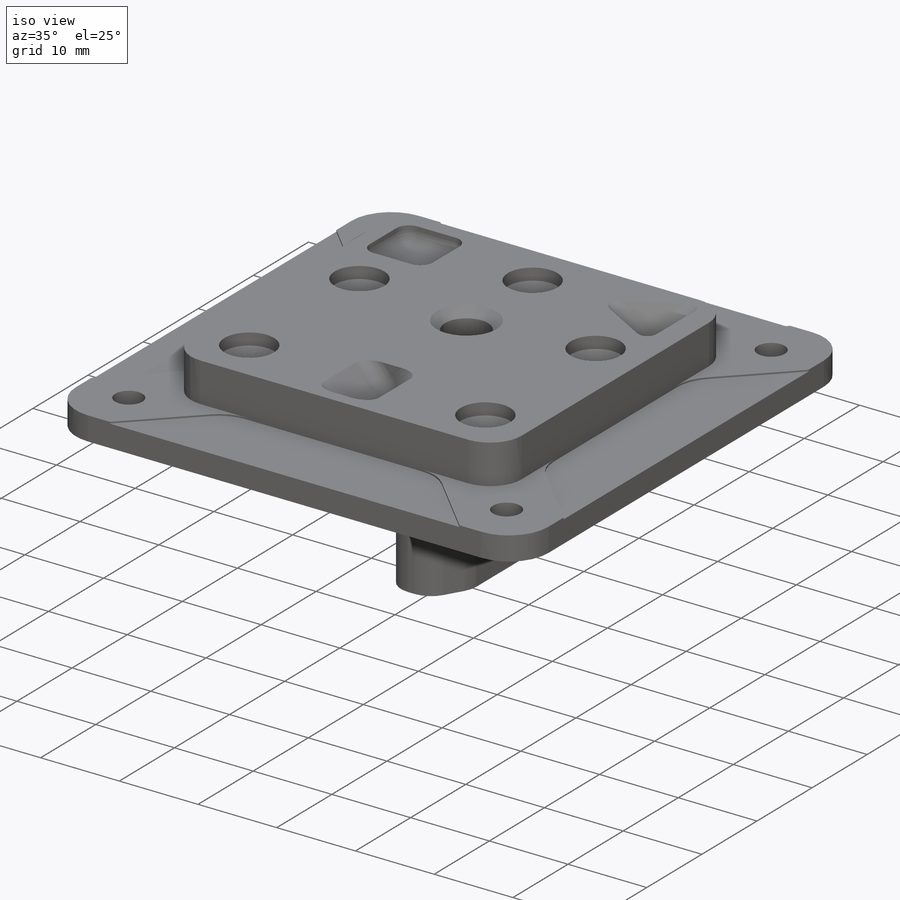
[diagram: iso view]
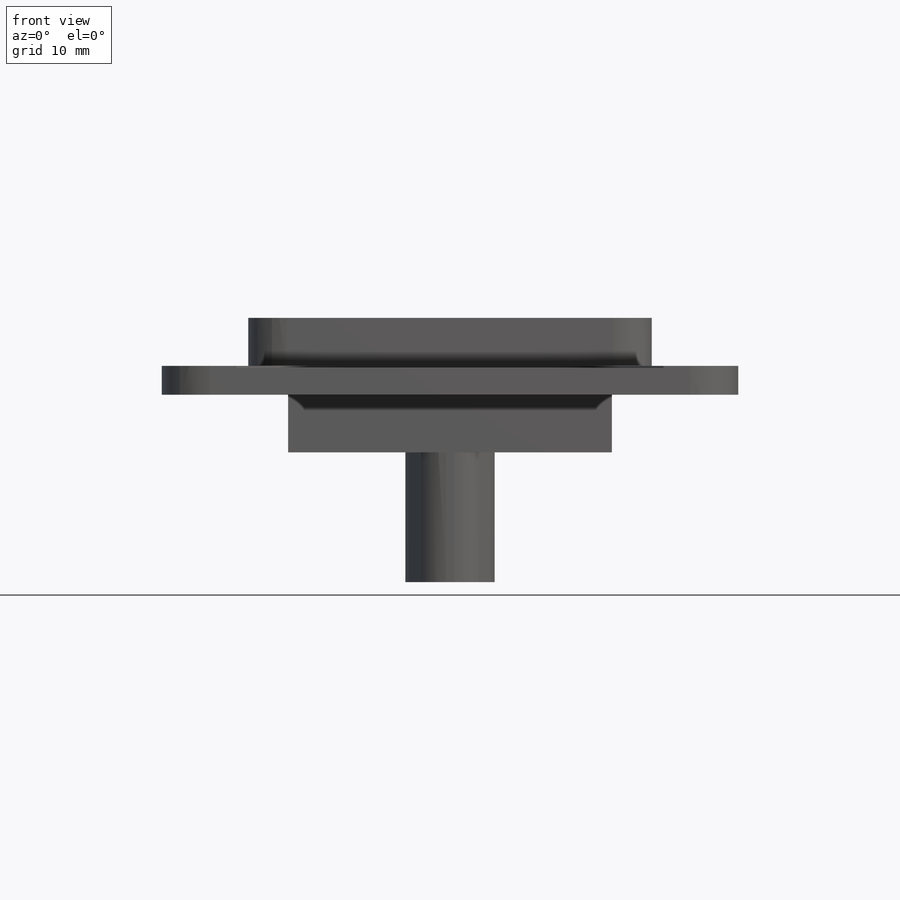
[diagram: front view]
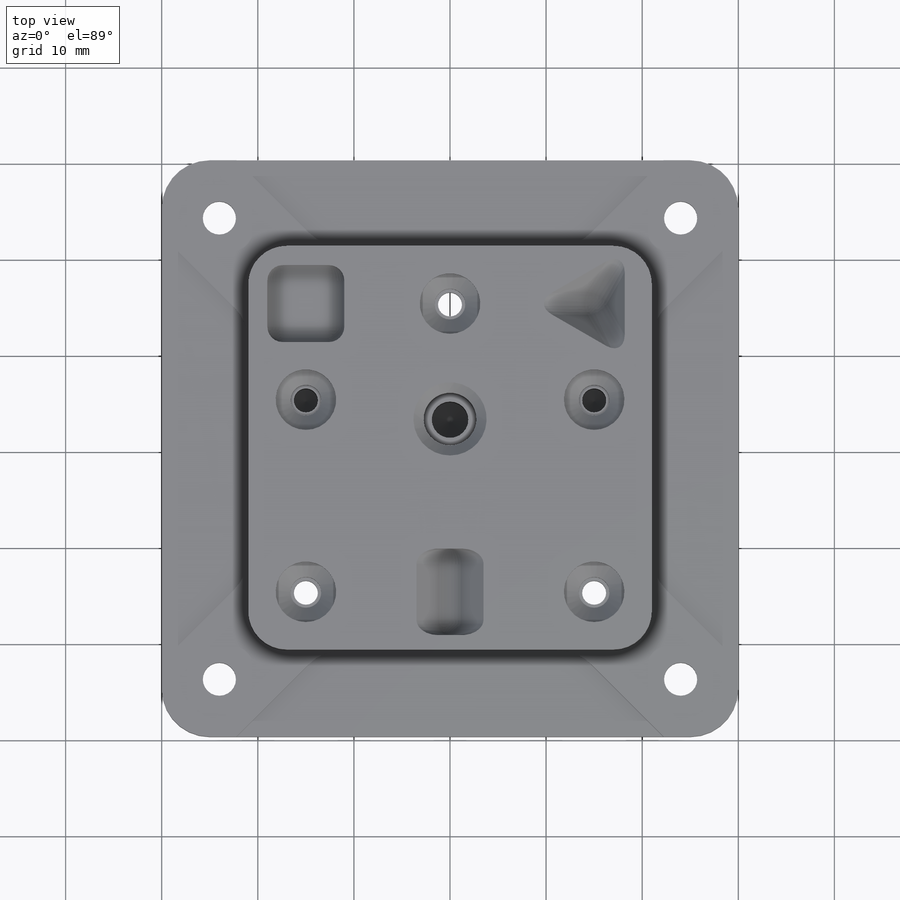
[diagram: top view]
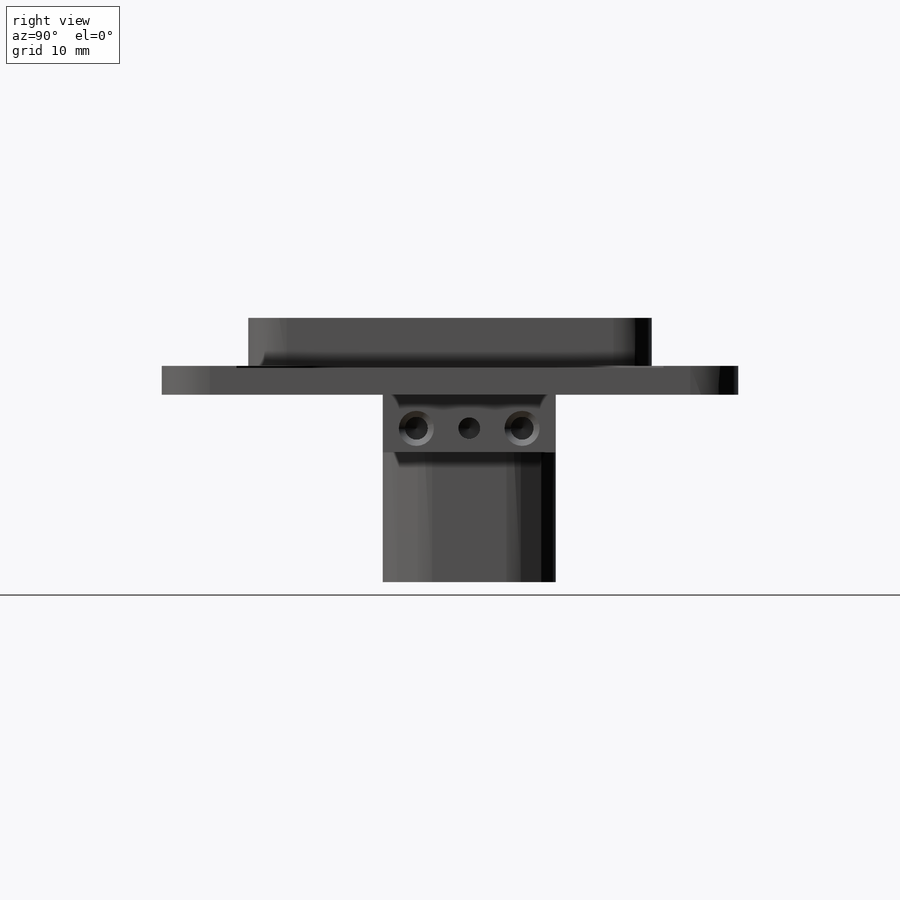
[diagram: right view]
SOLIDWORKS PART (.sldprt)
format: sldprt  version: not decoded by parser v0  size: 2,479,616 bytes
history: native  units: mm
features: sketch x27, thread x11, cut_extrude x7, fillet x7, hole x6, plane x5, extrude x2, mirror x2, delete_body x2, material x1, revolve x1, chamfer x1, boolean_combine x1 (+12 scaffold rows collapsed; 1 parser-record rows omitted)
feature tree (86):
  scaffold x12  (default folders/planes/origin — collapsed)
  material  "Material <not specified>"
  parser-record x1  (decoder bookkeeping rows leaked as tree rows — omitted from the tree; the rows remain in map.json)
  sketch  "Sketch17"  dims[D1=60.0mm D2=60.0mm]
  extrude  "center top start"  Depth=8mm
  sketch  "position holes"  dims[c1.D1=5.0mm c1.D2=10.0mm c1.D3=15.0mm c2.D2=15.0mm c2.D1=48.0mm]
  plane  "set ball height corner"  Offset=0.009133mm
  sketch  "Sketch19"  dims[D1=6.35mm]
  revolve  "Revolve1"  Angle=360deg
  sketch  "Sketch20"  dims[D1=6.35mm]
  sketch  "3DSketch5"  dims[c1.D1=~8.017996mm c2.D1=~54.73561deg c3.D1=~4.499261mm]
  plane  "real cornter cut plane"
  sketch  "Sketch33"
  cut_extrude  "Extrude15"  [1 undecoded]
  sketch  "Sketch22"  dims[c1.D1=70.0mm c2.D1=~139.510931deg c3.D1=9.0mm c3.D2=8.0mm]
  cut_extrude  "Extrude8"  Depth=2.175mm
  fillet  "Fillet9"  Radius=1.5875mm
  fillet  "Fillet10"  Radius=1.5875mm
  plane  "v groove"
  sketch  "Sketch23"  dims[D1=6.35mm D2=1.0mm D3=~17.106589mm]
  cut_extrude  "Extrude9"  Depth=9mm
  fillet  "Fillet11"  Radius=1.5875mm
  fillet  "Fillet12"  Radius=1.5875mm
  sketch  "Sketch27"  dims[D1=9.0mm D2=0.0mm]
  cut_extrude  "Extrude10"  Depth=5mm
  fillet  "Fillet15"  Radius=4mm
  sketch  "Sketch28"
  hole  "#8-32 Tapped Hole1"  Diameter=3.4544mm Depth=3mm
  sketch  "3DSketch3"
  sketch  "Sketch24"  dims[hole-wizard template sketch: 60 standard entries collapsed; hole parameters kept: c18.Thru Tap Drill Depth=3.0mm]
  thread  "Hole Thread18"  Diameter=4.1656mm  [1 undecoded]
  thread  "Hole Thread19"  Diameter=4.1656mm  [1 undecoded]
  thread  "Hole Thread20"  Diameter=4.1656mm  [1 undecoded]
  thread  "Hole Thread21"  Diameter=4.1656mm  [1 undecoded]
  sketch  "Sketch25"  dims[D1=12.0mm]
  fillet  "Fillet14"  Radius=5mm
  sketch  "Sketch29"  dims[c1.D3=5.0mm c1.D4=5.0mm c2.D3=5.0mm c2.D1=~11.172855mm c3.D1=45.0deg c3.D2=5.5mm]
  cut_extrude  "Extrude11"  Depth=0.2mm
  plane  "mid plane"
  sketch  "Sketch34"  dims[c1.D1=~4.434834mm c1.D7=~3.96875mm c2.D1=17.0mm c2.D2=8.0mm c2.D3=11.0mm c2.D4=21.0mm c2.D5=4.0mm c2.D6=6.0mm c2.D7=1.0mm c3.D5=1.0mm c3.D7=0.5mm c3.D8=3.0mm c3.D9=14.0mm c4.D5=6.0mm c4.D6=0.5mm c4.D2=11.0mm c4.D3=17.0mm c4.D4=21.0mm c5.D5=6.0mm c5.D2=17.0mm c5.D3=11.0mm]
  extrude  "Boss-Extrude1"  Depth=9mm
  chamfer  "Chamfer1"  Distance=2.5mm Angle=60deg
  fillet  "Fillet17"  Radius=3mm
  mirror  "Mirror4"
  hole  "#4-40 Tapped Hole1"  Diameter=2.2606mm Depth=8.175mm
  sketch  "Sketch36"  dims[D1=3.5mm D2=5.5mm]
  sketch  "Sketch37"  dims[hole-wizard template sketch: 47 standard entries collapsed; hole parameters kept: c15.Tap Drill Depth=8.175mm c15.D3=~14.816244mm c15.Drill Angle=118.0deg]
  thread  "Hole Thread12"  Diameter=5mm  [1 undecoded]
  hole  "3/32 (0.09375) Diameter Hole1"  Diameter=2.38125mm Depth=8mm
  sketch  "Sketch39"  dims[D1=11.0mm]
  sketch  "Sketch40"  dims[hole-wizard template sketch: 39 standard entries collapsed; hole parameters kept: c13.Hole Dia.=~2.38125mm c13.Hole Depth=8.0mm c13.Near C'Sink Dia.=~3.65125mm c13.D4=~33.297463mm c13.Near C'Sink Angle=90.0deg c14.D5=~14.816244mm c14.Drill Angle=118.0deg]
  mirror  "Mirror3"
  boolean_combine  "Combine1"
  hole  "#10-24 Tapped Hole1"  [1 undecoded]
  sketch  "3DSketch4"
  thread  "Hole Thread10"  Diameter=6mm  [1 undecoded]
  sketch  "Sketch26"  dims[hole-wizard template sketch: 40 standard entries collapsed; hole parameters kept: c13.Tap Drill Depth=11.0mm c13.Near C'Sink Dia.=7.62mm c13.D4=~33.297463mm c13.Near C'Sink Angle=90.0deg c14.D5=~14.816244mm c14.Drill Angle=118.0deg]
  plane  "Plane1"
  hole  "CSK for M3 Flat Head Machine Screw1"  Diameter=3.2mm Depth=4.999mm
  sketch  "Sketch42"  dims[D1=6.0mm D2=10.0mm]
  sketch  "Sketch41"  dims[hole-wizard template sketch: 31 standard entries collapsed; hole parameters kept: c10.Hole Dia.=3.2mm c10.Hole Depth=4.999mm c10.C'Sink Dia.=6.3mm c10.D4=~17.960512mm c10.C'Sink Angle=90.0deg c10.D5=~14.816244mm c10.Drill Angle=118.0deg c10.Head Clearance=1.5mm]
  hole  "M3x0.5 Tapped Hole1"  Diameter=2.5mm Depth=5mm
  sketch  "Sketch44"
  sketch  "Sketch43"  dims[hole-wizard template sketch: 47 standard entries collapsed; hole parameters kept: c15.Tap Drill Depth=5.0mm c15.D3=~14.816244mm c15.Drill Angle=118.0deg]
  thread  "Hole Thread13"  Diameter=3mm  [1 undecoded]
  thread  "Hole Thread14"  Diameter=5mm  [1 undecoded]
  thread  "Hole Thread15"  Diameter=3mm  [1 undecoded]
  thread  "Hole Thread16"  Diameter=5mm  [1 undecoded]
  thread  "Hole Thread17"  Diameter=3mm  [1 undecoded]
  delete_body  "Body-Delete1"
  delete_body  "Body-Delete2"
  sketch  "Sketch45"  dims[D1=0.0mm]
  cut_extrude  "extra trim oct5_2012"  Depth=1.5mm
  sketch  "Sketch46"  dims[D1=5.5mm]
  cut_extrude  "Cut-Extrude1"  [1 undecoded]
decode coverage: 54 of 67 modeling features carry decoded parameters
note: ~ marks probable driven/reference dimensions
note: 14 parameter values undecoded
summary: Diameter pulled from absorbed wizard sketch | no parameter record found for 3 features
note: suppression state not decoded; provenance and decode notes live in map.json
